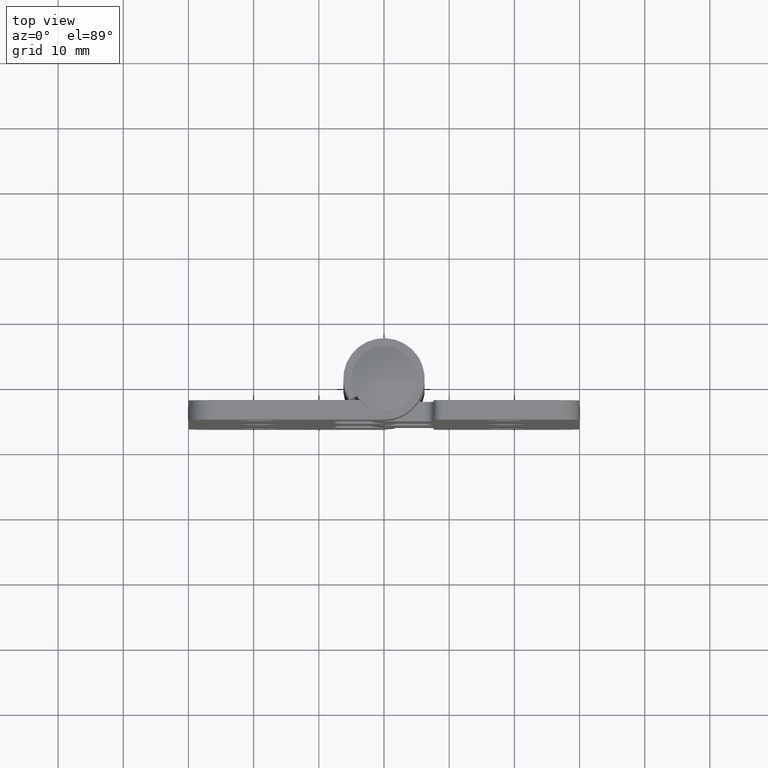
[diagram: clean part render]
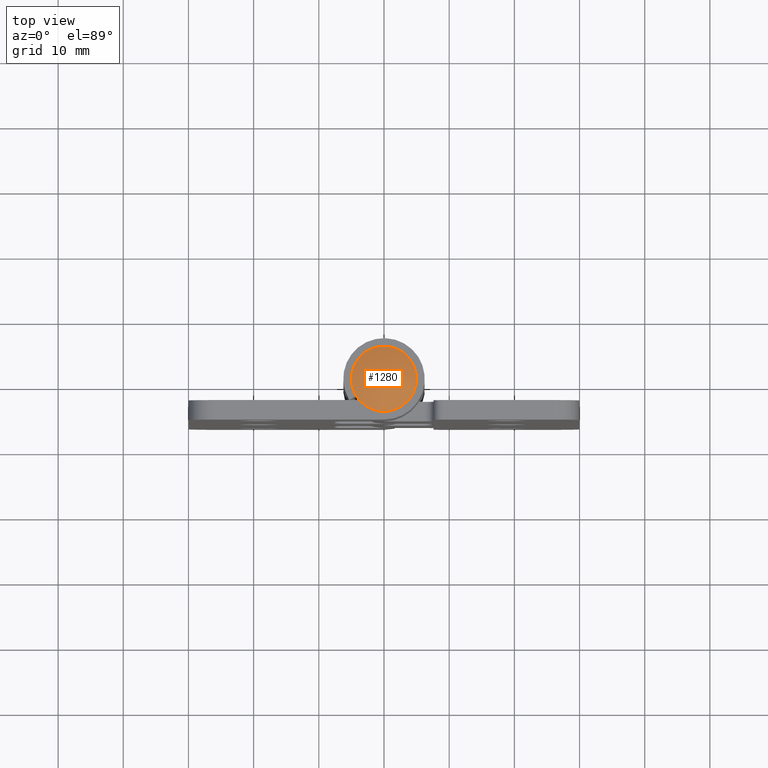
[diagram: same view with one face highlighted and labeled with its STEP entity id]
A machine part, top view. The second image highlights one B-rep face of the part: STEP entity #1280.
In plain terms, the highlighted spherical surface has radius 11.0167 mm.
Its self-contained STEP definition (entity closure, byte-faithful):
#27=SPHERICAL_SURFACE('',#1421,11.0166666666666);
#166=FACE_OUTER_BOUND('',#258,.T.);
#258=EDGE_LOOP('',(#1176));
#538=CIRCLE('',#1422,4.99999999999999);
#652=VERTEX_POINT('',#2176);
#824=EDGE_CURVE('',#652,#652,#538,.T.);
#1176=ORIENTED_EDGE('',*,*,#824,.F.);
#1280=ADVANCED_FACE('',(#166),#27,.T.);
#1421=AXIS2_PLACEMENT_3D('',#2175,#1806,#1807);
#1422=AXIS2_PLACEMENT_3D('',#2177,#1808,#1809);
#1806=DIRECTION('center_axis',(1.22464679914735E-16,0.,1.));
#1807=DIRECTION('ref_axis',(1.,0.,0.));
#1808=DIRECTION('center_axis',(-1.18108832406932E-16,0.,-1.));
#1809=DIRECTION('ref_axis',(1.,0.,-1.18108832406932E-16));
#2175=CARTESIAN_POINT('Origin',(8.88178419700125E-15,0.,35.9833333333333));
#2176=CARTESIAN_POINT('',(-4.99999999999998,-6.12323399573675E-16,45.8));
#2177=CARTESIAN_POINT('Origin',(5.40938452423747E-15,0.,45.8));